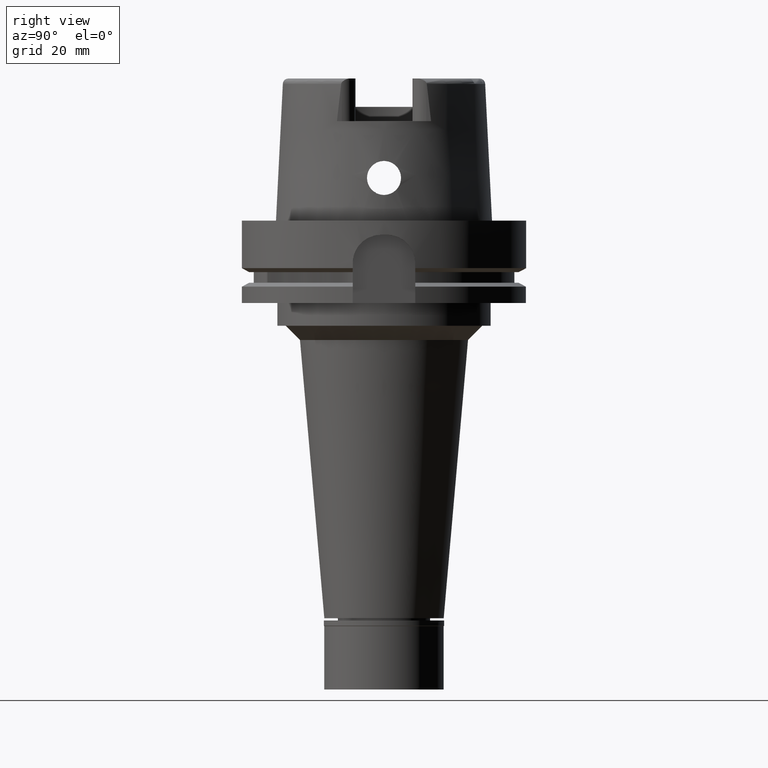
[diagram: clean part render]
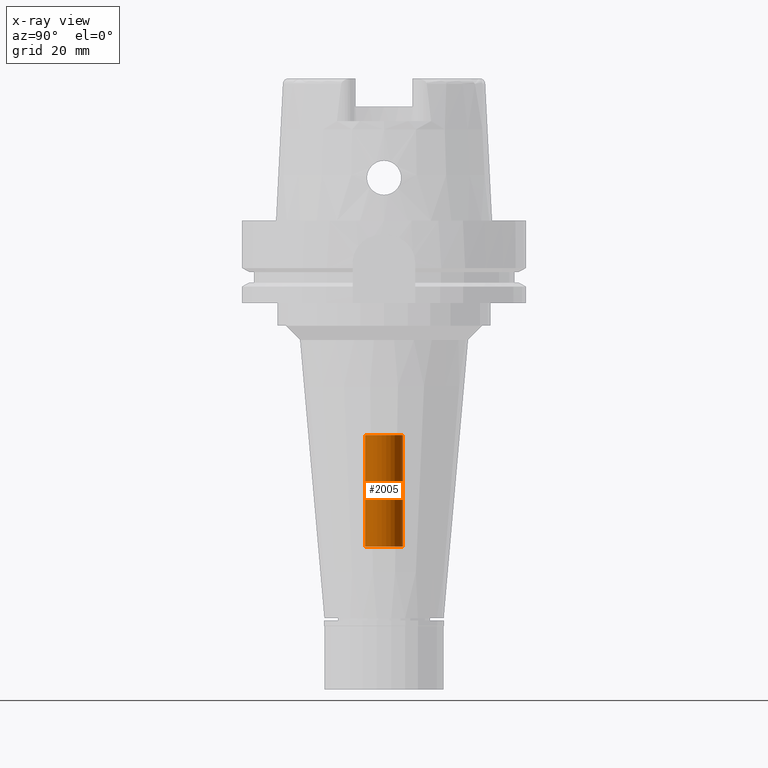
[diagram: x-ray — body ghosted, one internal face saturated and labeled with its STEP entity id]
A machine part, right view, then the same camera in x-ray: the body is ghosted and one INTERNAL B-rep face — a face not visible from any outside direction — is saturated and labeled: STEP entity #2005.
In plain terms, the highlighted cylindrical surface (edge-blend (fillet) strip) has radius 6.65 mm, axis along (0, 0, 1).
Its self-contained STEP definition (entity closure, byte-faithful):
#3 = DIRECTION ( 'NONE',  ( 0.0000000000000000000, 0.0000000000000000000, 1.000000000000000000 ) ) ;
#213 = CARTESIAN_POINT ( 'NONE',  ( 0.0000000000000000000, 0.0000000000000000000, -114.7999999999999972 ) ) ;
#258 = AXIS2_PLACEMENT_3D ( 'NONE', #213, #1138, #1928 ) ;
#262 = DIRECTION ( 'NONE',  ( 0.0000000000000000000, 0.0000000000000000000, 1.000000000000000000 ) ) ;
#325 = CARTESIAN_POINT ( 'NONE',  ( 0.0000000000000000000, -6.649999999999999467, -75.50000000000000000 ) ) ;
#444 = CIRCLE ( 'NONE', #258, 6.649999999999999467 ) ;
#743 = CYLINDRICAL_SURFACE ( 'NONE', #3217, 6.649999999999999467 ) ;
#756 = EDGE_CURVE ( 'NONE', #4751, #3339, #3325, .T. ) ;
#761 = LINE ( 'NONE', #2992, #4571 ) ;
#807 = CARTESIAN_POINT ( 'NONE',  ( 0.0000000000000000000, -6.649999999999999467, -114.7999999999999972 ) ) ;
#1138 = DIRECTION ( 'NONE',  ( 0.0000000000000000000, 0.0000000000000000000, -1.000000000000000000 ) ) ;
#1159 = AXIS2_PLACEMENT_3D ( 'NONE', #2773, #3089, #1391 ) ;
#1160 = FACE_OUTER_BOUND ( 'NONE', #1938, .T. ) ;
#1335 = ORIENTED_EDGE ( 'NONE', *, *, #2294, .F. ) ;
#1391 = DIRECTION ( 'NONE',  ( 0.0000000000000000000, -1.000000000000000000, 0.0000000000000000000 ) ) ;
#1573 = EDGE_CURVE ( 'NONE', #4185, #4751, #2160, .T. ) ;
#1928 = DIRECTION ( 'NONE',  ( 0.0000000000000000000, 1.000000000000000000, 0.0000000000000000000 ) ) ;
#1938 = EDGE_LOOP ( 'NONE', ( #4938, #2287, #5037, #1335 ) ) ;
#2005 = ADVANCED_FACE ( 'NONE', ( #1160 ), #743, .F. ) ;
#2160 = LINE ( 'NONE', #807, #2522 ) ;
#2242 = VERTEX_POINT ( 'NONE', #2824 ) ;
#2287 = ORIENTED_EDGE ( 'NONE', *, *, #1573, .T. ) ;
#2294 = EDGE_CURVE ( 'NONE', #2242, #3339, #761, .T. ) ;
#2380 = CARTESIAN_POINT ( 'NONE',  ( 0.0000000000000000000, 6.649999999999999467, -75.50000000000000000 ) ) ;
#2522 = VECTOR ( 'NONE', #4254, 1000.000000000000000 ) ;
#2551 = CARTESIAN_POINT ( 'NONE',  ( 0.0000000000000000000, -6.649999999999999467, -114.7999999999999972 ) ) ;
#2773 = CARTESIAN_POINT ( 'NONE',  ( 0.0000000000000000000, 0.0000000000000000000, -75.50000000000000000 ) ) ;
#2824 = CARTESIAN_POINT ( 'NONE',  ( 0.0000000000000000000, 6.649999999999999467, -114.7999999999999972 ) ) ;
#2992 = CARTESIAN_POINT ( 'NONE',  ( 0.0000000000000000000, 6.649999999999999467, -114.7999999999999972 ) ) ;
#3089 = DIRECTION ( 'NONE',  ( 0.0000000000000000000, 0.0000000000000000000, 1.000000000000000000 ) ) ;
#3217 = AXIS2_PLACEMENT_3D ( 'NONE', #4135, #262, #4530 ) ;
#3325 = CIRCLE ( 'NONE', #1159, 6.649999999999999467 ) ;
#3339 = VERTEX_POINT ( 'NONE', #2380 ) ;
#3965 = EDGE_CURVE ( 'NONE', #2242, #4185, #444, .T. ) ;
#4135 = CARTESIAN_POINT ( 'NONE',  ( 0.0000000000000000000, 0.0000000000000000000, -167.8750000000000000 ) ) ;
#4185 = VERTEX_POINT ( 'NONE', #2551 ) ;
#4254 = DIRECTION ( 'NONE',  ( 0.0000000000000000000, 0.0000000000000000000, 1.000000000000000000 ) ) ;
#4530 = DIRECTION ( 'NONE',  ( 0.0000000000000000000, 1.000000000000000000, 0.0000000000000000000 ) ) ;
#4571 = VECTOR ( 'NONE', #3, 1000.000000000000000 ) ;
#4751 = VERTEX_POINT ( 'NONE', #325 ) ;
#4938 = ORIENTED_EDGE ( 'NONE', *, *, #3965, .T. ) ;
#5037 = ORIENTED_EDGE ( 'NONE', *, *, #756, .T. ) ;